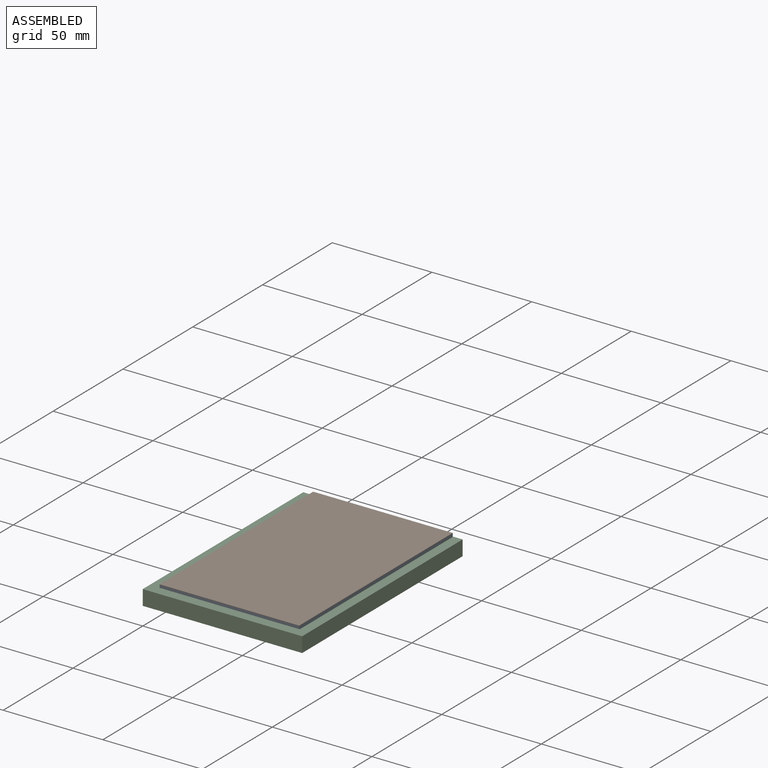
[diagram: assembled view]
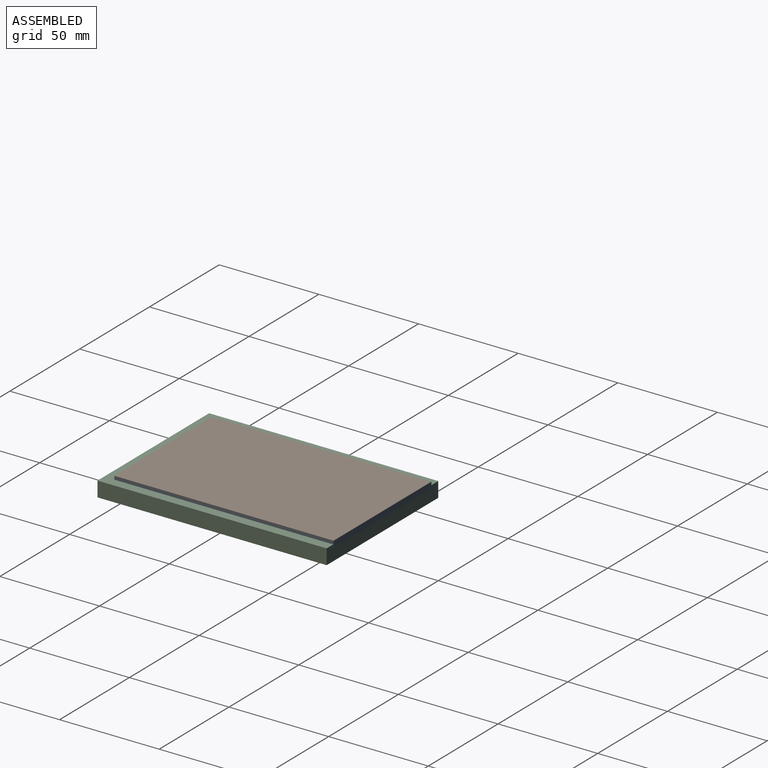
[diagram: assembled view, second angle]
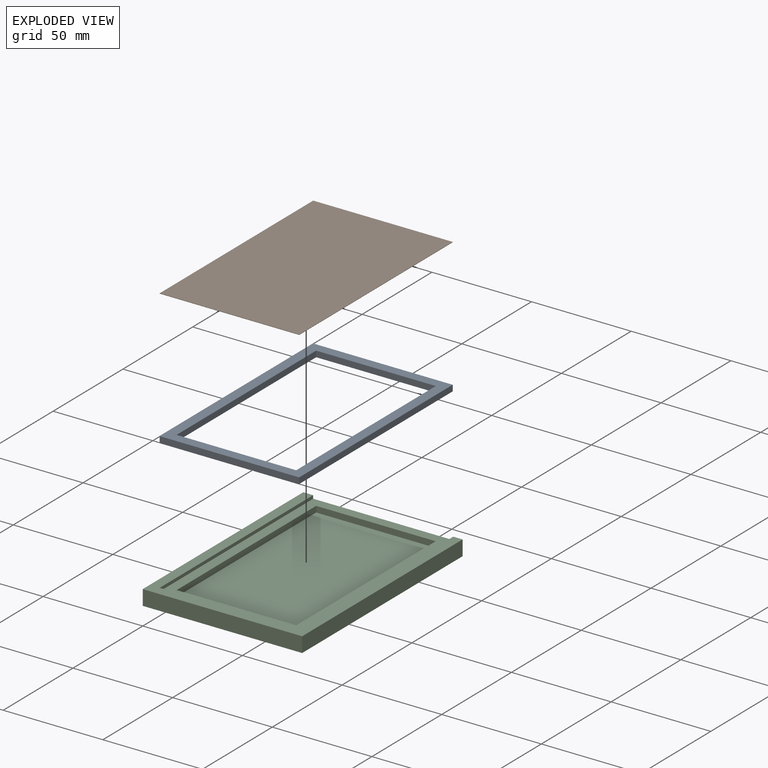
[diagram: exploded view]
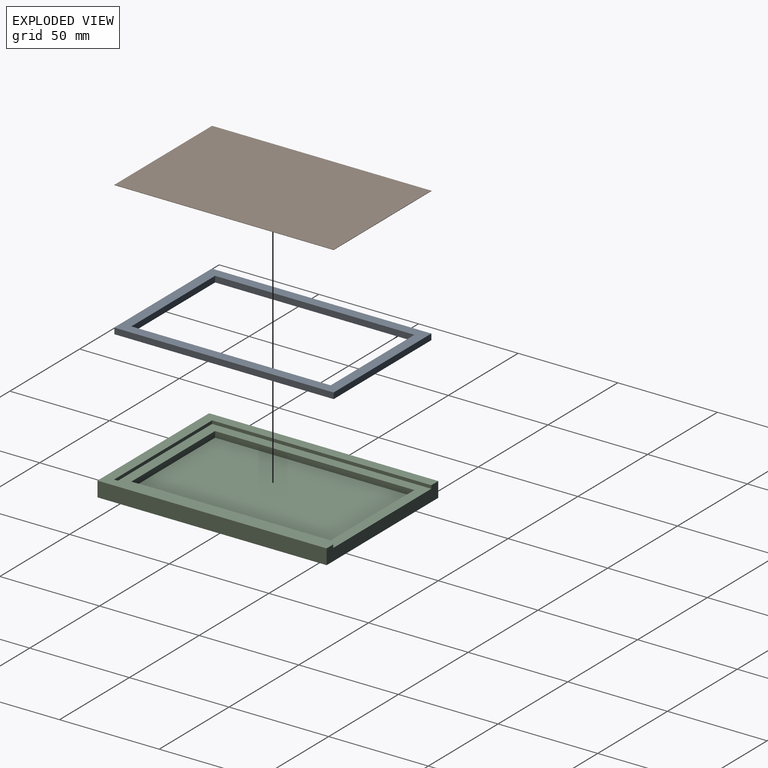
[diagram: exploded view, second angle]
ASSEMBLY  parts=3 mates=7
PART A: 10 faces, bbox 70x110x3 mm
  f0: plane 60x3mm, normal (0,1,0), area 180mm2, adj f1,f7,f8,f9
  f1: plane 100x3mm, normal (1,0,0), area 300mm2, adj f0,f2,f8,f9
  f2: plane 60x3mm, normal (0,-1,0), area 180mm2, adj f1,f7,f8,f9
  f3: plane 110x3mm, normal (-1,0,0), area 330mm2, adj f4,f6,f8,f9
  f4: plane 70x3mm, normal (0,-1,0), area 210mm2, adj f3,f5,f8,f9
  f5: plane 110x3mm, normal (1,0,0), area 330mm2, adj f4,f6,f8,f9
  f6: plane 70x3mm, normal (0,1,0), area 210mm2, adj f3,f5,f8,f9
  f7: plane 100x3mm, normal (-1,0,0), area 300mm2, adj f0,f2,f8,f9
  f8: plane 110x70mm, normal (0,0,-1), area 1700mm2, adj f0,f1,f2,f3,f4,f5,f6,f7
  f9: plane 110x70mm, normal (0,0,1), area 1700mm2, adj f0,f1,f2,f3,f4,f5,f6,f7
PART B: 6 faces, bbox 70x110x0.2 mm
  f0: plane 110x0.2mm, normal (-1,0,0), area 22mm2, adj f1,f3,f4,f5
  f1: plane 70x0.2mm, normal (0,-1,0), area 14mm2, adj f0,f2,f4,f5
  f2: plane 110x0.2mm, normal (1,0,0), area 22mm2, adj f1,f3,f4,f5
  f3: plane 70x0.2mm, normal (0,1,0), area 14mm2, adj f0,f2,f4,f5
  f4: plane 110x70mm, normal (0,0,1), area 7700mm2, adj f0,f1,f2,f3
  f5: plane 110x70mm, normal (0,0,-1), area 7700mm2, adj f0,f1,f2,f3
PART C: 15 faces, bbox 80x115x7.6 mm
  f0: plane 110x70.26mm, normal (0,0,1), area 1729mm2, adj f1,f6,f7,f8,f9,f11,f12,f13
  f1: plane 80x7.6mm, normal (0,1,0), area 495.6mm2, adj f0,f2,f4,f5,f11,f12,f14
  f2: plane 115x7.6mm, normal (-1,0,0), area 874mm2, adj f1,f3,f5,f14
  f3: plane 80x7.6mm, normal (0,-1,0), area 608mm2, adj f2,f4,f5,f14
  f4: plane 115x7.6mm, normal (1,0,0), area 874mm2, adj f1,f3,f5,f14
  f5: plane 115x80mm, normal (0,0,-1), area 9200mm2, adj f1,f2,f3,f4
  f6: plane 60x3mm, normal (0,1,0), area 180mm2, adj f0,f7,f9,f10
  f7: plane 100x3mm, normal (1,0,0), area 300mm2, adj f0,f6,f8,f10
  f8: plane 60x3mm, normal (0,-1,0), area 180mm2, adj f0,f7,f9,f10
  f9: plane 100x3mm, normal (-1,0,0), area 300mm2, adj f0,f6,f8,f10
  f10: plane 100x60mm, normal (0,0,1), area 6000mm2, adj f6,f7,f8,f9
  f11: plane 110x1.6mm, normal (1,0,0), area 176mm2, adj f0,f1,f13,f14
  f12: plane 110x1.6mm, normal (-1,0,0), area 176mm2, adj f0,f1,f13,f14
  f13: plane 70.26x1.6mm, normal (0,1,0), area 112.4mm2, adj f0,f11,f12,f14
  f14: plane 115x80mm, normal (0,0,1), area 1471mm2, adj f1,f2,f3,f4,f11,f12,f13
PLACE A t=(5,5,6)mm
PLACE B t=(5,5,6)mm
PLACE C at identity fixed
MATE planar A.f8 <-> C.f0  axis (0,0,-1) through (40,60,3)mm
MATE planar B.f1 <-> A.f4  axis (0,-1,0) through (40,5,6.1)mm
MATE planar B.f5 <-> A.f9  axis (0,0,-1) through (40,60,6)mm
MATE planar A.f3 <-> C.f11  axis (-1,0,0) through (5,60,4.5)mm
MATE planar A.f4 <-> C.f13  axis (0,-1,0) through (40,5,4.5)mm
MATE planar A.f8 <-> C.f0  axis (0,0,-1) through (40,60,3)mm
MATE planar B.f2 <-> A.f5  axis (1,0,0) through (75,60,6.1)mm
